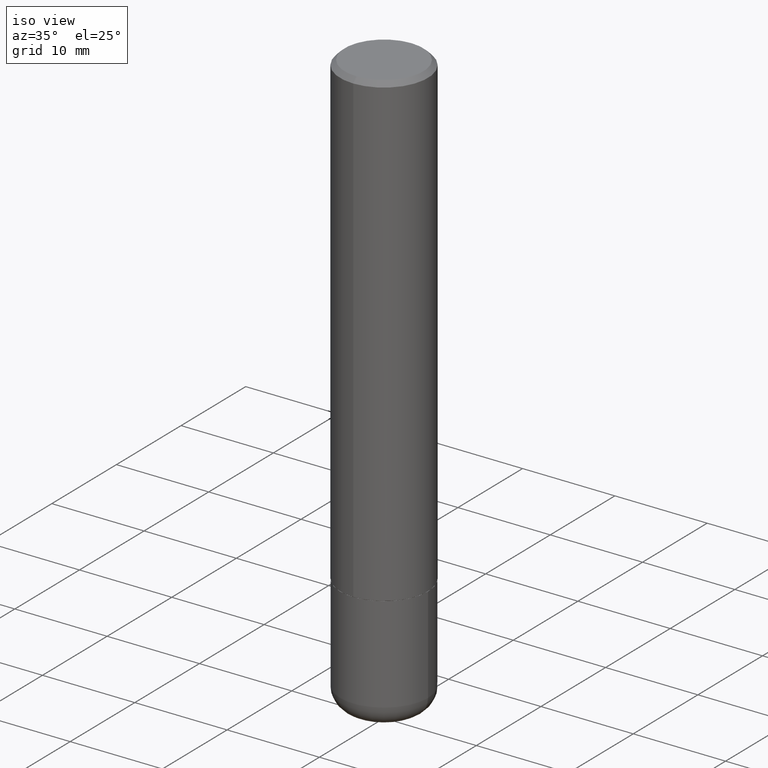
[diagram: clean part render]
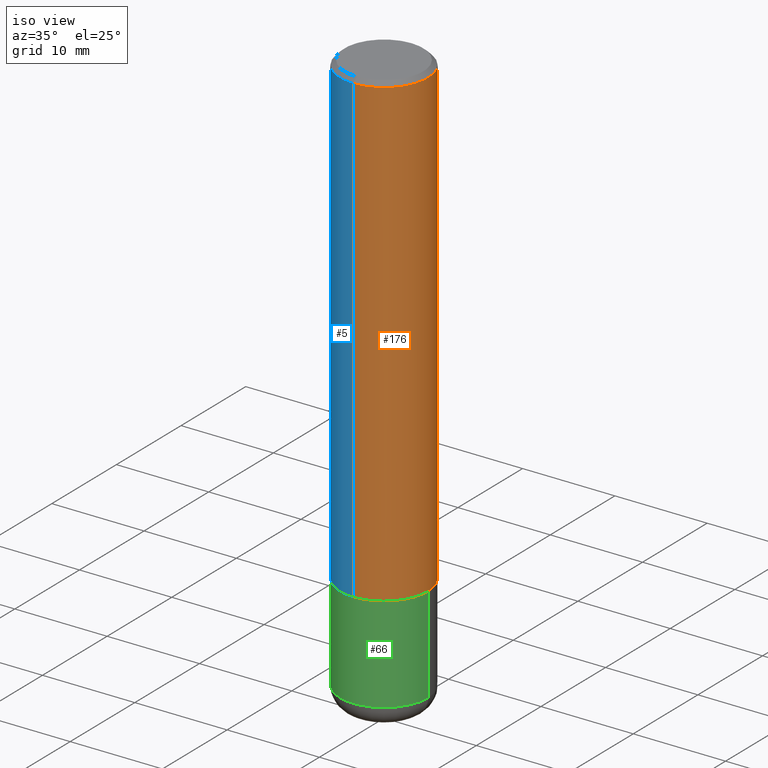
[diagram: same view with three faces highlighted in distinct colors, each labeled with its STEP entity id]
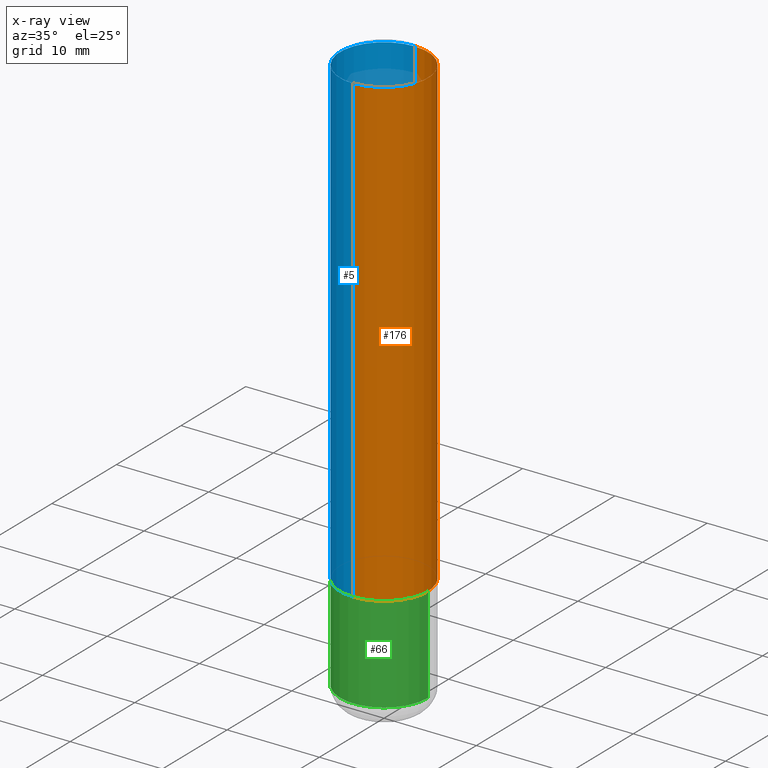
[diagram: x-ray of the same camera — body ghosted, the three highlighted faces saturated]
A machine part, iso view with three faces highlighted in distinct colors.
The next image is the same camera in x-ray (body ghosted, the three faces saturated) — at least one of them is partly hidden behind the body in this view.
Their STEP definitions:

[orange] entity #176 — the highlighted cylindrical surface (partial cylindrical patch) has radius 4.7625 mm, axis along (-0, 0, 1).
#3 = DIRECTION ( 'NONE',  ( -2.445162114595160294E-29, 3.491920538655792902E-15, 1.000000000000000000 ) ) ;
#16 = VERTEX_POINT ( 'NONE', #381 ) ;
#30 = EDGE_CURVE ( 'NONE', #89, #55, #33, .T. ) ;
#33 = LINE ( 'NONE', #211, #132 ) ;
#55 = VERTEX_POINT ( 'NONE', #123 ) ;
#72 = ORIENTED_EDGE ( 'NONE', *, *, #341, .F. ) ;
#84 = CARTESIAN_POINT ( 'NONE',  ( 4.890324229190331589E-31, -6.983841077311600052E-17, -0.02000000000000004205 ) ) ;
#89 = VERTEX_POINT ( 'NONE', #180 ) ;
#103 = CYLINDRICAL_SURFACE ( 'NONE', #200, 0.1875000000000001943 ) ;
#109 = CARTESIAN_POINT ( 'NONE',  ( 0.000000000000000000, 0.000000000000000000, 0.000000000000000000 ) ) ;
#117 = EDGE_CURVE ( 'NONE', #401, #16, #245, .T. ) ;
#123 = CARTESIAN_POINT ( 'NONE',  ( -1.286343374582161774E-15, -0.1875000000000001110, -0.01999999999999938979 ) ) ;
#132 = VECTOR ( 'NONE', #3, 39.37007874015748143 ) ;
#138 = DIRECTION ( 'NONE',  ( -2.445162114595160575E-29, 3.491920538655792507E-15, 1.000000000000000000 ) ) ;
#144 = CIRCLE ( 'NONE', #194, 0.1875000000000002776 ) ;
#146 = CARTESIAN_POINT ( 'NONE',  ( 1.332267629550213684E-15, 0.1874999999999933109, -1.999000000000000554 ) ) ;
#150 = DIRECTION ( 'NONE',  ( -2.445162114595160575E-29, 3.491920538655792507E-15, 1.000000000000000000 ) ) ;
#152 = VECTOR ( 'NONE', #182, 39.37007874015748143 ) ;
#176 = ADVANCED_FACE ( 'NONE', ( #360 ), #103, .T. ) ;
#180 = CARTESIAN_POINT ( 'NONE',  ( -1.309305502066128268E-15, -0.1875000000000072442, -1.998999999999999444 ) ) ;
#182 = DIRECTION ( 'NONE',  ( -2.445162114595160294E-29, 3.491920538655792902E-15, 1.000000000000000000 ) ) ;
#190 = CARTESIAN_POINT ( 'NONE',  ( 4.887879067075725967E-29, -6.980349156772927879E-15, -1.998999999999999888 ) ) ;
#194 = AXIS2_PLACEMENT_3D ( 'NONE', #190, #138, #267 ) ;
#200 = AXIS2_PLACEMENT_3D ( 'NONE', #109, #367, #262 ) ;
#204 = DIRECTION ( 'NONE',  ( -6.982962677686265922E-15, -1.000000000000000000, 3.483106191921934371E-15 ) ) ;
#207 = AXIS2_PLACEMENT_3D ( 'NONE', #84, #150, #204 ) ;
#211 = CARTESIAN_POINT ( 'NONE',  ( -1.309305502066176192E-15, -0.1875000000000001943, 6.547351009979617607E-16 ) ) ;
#245 = LINE ( 'NONE', #379, #152 ) ;
#262 = DIRECTION ( 'NONE',  ( -6.982962677686265922E-15, -1.000000000000000000, 3.491920538655792507E-15 ) ) ;
#267 = DIRECTION ( 'NONE',  ( -6.982962677686266711E-15, -1.000000000000000000, 2.913971193241876428E-15 ) ) ;
#276 = ORIENTED_EDGE ( 'NONE', *, *, #30, .F. ) ;
#290 = EDGE_CURVE ( 'NONE', #89, #401, #144, .T. ) ;
#302 = EDGE_LOOP ( 'NONE', ( #387, #345, #72, #276 ) ) ;
#341 = EDGE_CURVE ( 'NONE', #55, #16, #342, .T. ) ;
#342 = CIRCLE ( 'NONE', #207, 0.1875000000000000555 ) ;
#345 = ORIENTED_EDGE ( 'NONE', *, *, #117, .T. ) ;
#360 = FACE_OUTER_BOUND ( 'NONE', #302, .T. ) ;
#367 = DIRECTION ( 'NONE',  ( -2.445162114595160575E-29, 3.491920538655792507E-15, 1.000000000000000000 ) ) ;
#379 = CARTESIAN_POINT ( 'NONE',  ( 1.332267629550188835E-15, 0.1875000000000001943, -6.547351009979617607E-16 ) ) ;
#381 = CARTESIAN_POINT ( 'NONE',  ( 1.309305502066175797E-15, 0.1874999999999999722, -0.02000000000000069431 ) ) ;
#387 = ORIENTED_EDGE ( 'NONE', *, *, #290, .T. ) ;
#401 = VERTEX_POINT ( 'NONE', #146 ) ;

[blue] entity #5 — the highlighted cylindrical surface (partial cylindrical patch) has radius 4.7625 mm, axis along (-0, 0, 1).
#3 = DIRECTION ( 'NONE',  ( -2.445162114595160294E-29, 3.491920538655792902E-15, 1.000000000000000000 ) ) ;
#5 = ADVANCED_FACE ( 'NONE', ( #221 ), #319, .T. ) ;
#6 = DIRECTION ( 'NONE',  ( -6.982962677686265922E-15, -1.000000000000000000, 3.483106191921934371E-15 ) ) ;
#7 = DIRECTION ( 'NONE',  ( -2.445162114595160575E-29, 3.491920538655792507E-15, 1.000000000000000000 ) ) ;
#16 = VERTEX_POINT ( 'NONE', #381 ) ;
#30 = EDGE_CURVE ( 'NONE', #89, #55, #33, .T. ) ;
#33 = LINE ( 'NONE', #211, #132 ) ;
#55 = VERTEX_POINT ( 'NONE', #123 ) ;
#89 = VERTEX_POINT ( 'NONE', #180 ) ;
#105 = EDGE_CURVE ( 'NONE', #16, #55, #312, .T. ) ;
#110 = ORIENTED_EDGE ( 'NONE', *, *, #30, .T. ) ;
#117 = EDGE_CURVE ( 'NONE', #401, #16, #245, .T. ) ;
#123 = CARTESIAN_POINT ( 'NONE',  ( -1.286343374582161774E-15, -0.1875000000000001110, -0.01999999999999938979 ) ) ;
#132 = VECTOR ( 'NONE', #3, 39.37007874015748143 ) ;
#137 = DIRECTION ( 'NONE',  ( -6.982962677686266711E-15, -1.000000000000000000, 2.913971193241876428E-15 ) ) ;
#139 = CIRCLE ( 'NONE', #377, 0.1875000000000002776 ) ;
#146 = CARTESIAN_POINT ( 'NONE',  ( 1.332267629550213684E-15, 0.1874999999999933109, -1.999000000000000554 ) ) ;
#147 = EDGE_LOOP ( 'NONE', ( #326, #358, #110, #224 ) ) ;
#152 = VECTOR ( 'NONE', #182, 39.37007874015748143 ) ;
#180 = CARTESIAN_POINT ( 'NONE',  ( -1.309305502066128268E-15, -0.1875000000000072442, -1.998999999999999444 ) ) ;
#182 = DIRECTION ( 'NONE',  ( -2.445162114595160294E-29, 3.491920538655792902E-15, 1.000000000000000000 ) ) ;
#185 = DIRECTION ( 'NONE',  ( -2.445162114595160575E-29, 3.491920538655792507E-15, 1.000000000000000000 ) ) ;
#202 = EDGE_CURVE ( 'NONE', #401, #89, #139, .T. ) ;
#211 = CARTESIAN_POINT ( 'NONE',  ( -1.309305502066176192E-15, -0.1875000000000001943, 6.547351009979617607E-16 ) ) ;
#221 = FACE_OUTER_BOUND ( 'NONE', #147, .T. ) ;
#224 = ORIENTED_EDGE ( 'NONE', *, *, #105, .F. ) ;
#231 = CARTESIAN_POINT ( 'NONE',  ( 4.887879067075725967E-29, -6.980349156772927879E-15, -1.998999999999999888 ) ) ;
#245 = LINE ( 'NONE', #379, #152 ) ;
#251 = CARTESIAN_POINT ( 'NONE',  ( 0.000000000000000000, 0.000000000000000000, 0.000000000000000000 ) ) ;
#312 = CIRCLE ( 'NONE', #321, 0.1875000000000000555 ) ;
#319 = CYLINDRICAL_SURFACE ( 'NONE', #385, 0.1875000000000001943 ) ;
#321 = AXIS2_PLACEMENT_3D ( 'NONE', #346, #185, #6 ) ;
#326 = ORIENTED_EDGE ( 'NONE', *, *, #117, .F. ) ;
#346 = CARTESIAN_POINT ( 'NONE',  ( 4.890324229190331589E-31, -6.983841077311600052E-17, -0.02000000000000004205 ) ) ;
#358 = ORIENTED_EDGE ( 'NONE', *, *, #202, .T. ) ;
#363 = DIRECTION ( 'NONE',  ( -2.445162114595160575E-29, 3.491920538655792507E-15, 1.000000000000000000 ) ) ;
#377 = AXIS2_PLACEMENT_3D ( 'NONE', #231, #363, #137 ) ;
#379 = CARTESIAN_POINT ( 'NONE',  ( 1.332267629550188835E-15, 0.1875000000000001943, -6.547351009979617607E-16 ) ) ;
#381 = CARTESIAN_POINT ( 'NONE',  ( 1.309305502066175797E-15, 0.1874999999999999722, -0.02000000000000069431 ) ) ;
#385 = AXIS2_PLACEMENT_3D ( 'NONE', #251, #7, #386 ) ;
#386 = DIRECTION ( 'NONE',  ( -6.982962677686265922E-15, -1.000000000000000000, 3.491920538655792507E-15 ) ) ;
#401 = VERTEX_POINT ( 'NONE', #146 ) ;

[green] entity #66 — the highlighted cylindrical surface (partial cylindrical patch) has radius 4.7625 mm, axis along (-0, 0, 1).
#1 = DIRECTION ( 'NONE',  ( 1.000000000000000000, -6.982962677686266711E-15, 0.000000000000000000 ) ) ;
#13 = DIRECTION ( 'NONE',  ( 1.000000000000000000, -6.982962677686261189E-15, 0.000000000000000000 ) ) ;
#31 = CARTESIAN_POINT ( 'NONE',  ( 4.890937612370273194E-29, -6.982962677686291165E-15, -2.000000000000000000 ) ) ;
#40 = DIRECTION ( 'NONE',  ( -2.445468806185136597E-29, 3.491481338843145583E-15, 1.000000000000000000 ) ) ;
#47 = ORIENTED_EDGE ( 'NONE', *, *, #258, .T. ) ;
#49 = EDGE_LOOP ( 'NONE', ( #339, #47, #71, #142 ) ) ;
#54 = LINE ( 'NONE', #303, #215 ) ;
#66 = ADVANCED_FACE ( 'NONE', ( #164 ), #154, .T. ) ;
#68 = DIRECTION ( 'NONE',  ( 1.000000000000000000, -6.982962677686265922E-15, 4.876176775795935793E-29 ) ) ;
#70 = AXIS2_PLACEMENT_3D ( 'NONE', #352, #223, #68 ) ;
#71 = ORIENTED_EDGE ( 'NONE', *, *, #383, .T. ) ;
#113 = DIRECTION ( 'NONE',  ( -2.445468806185136877E-29, 3.491481338843145188E-15, 1.000000000000000000 ) ) ;
#122 = EDGE_CURVE ( 'NONE', #418, #296, #181, .T. ) ;
#131 = CARTESIAN_POINT ( 'NONE',  ( 0.1875000000000000278, -8.292268179752466962E-15, -2.000000000000000000 ) ) ;
#142 = ORIENTED_EDGE ( 'NONE', *, *, #122, .F. ) ;
#143 = CARTESIAN_POINT ( 'NONE',  ( 0.1874999999999999722, -9.723775528678158264E-15, -2.410000000000000142 ) ) ;
#154 = CYLINDRICAL_SURFACE ( 'NONE', #70, 0.1875000000000000278 ) ;
#156 = DIRECTION ( 'NONE',  ( -2.445468806185136597E-29, 3.491481338843145583E-15, 1.000000000000000000 ) ) ;
#164 = FACE_OUTER_BOUND ( 'NONE', #49, .T. ) ;
#181 = CIRCLE ( 'NONE', #279, 0.1875000000000000278 ) ;
#209 = CARTESIAN_POINT ( 'NONE',  ( -0.1875000000000000278, 1.332267629550188046E-15, -9.223003294227947991E-30 ) ) ;
#215 = VECTOR ( 'NONE', #113, 39.37007874015748143 ) ;
#223 = DIRECTION ( 'NONE',  ( -2.445468806185136597E-29, 3.491481338843145583E-15, 1.000000000000000000 ) ) ;
#236 = LINE ( 'NONE', #209, #336 ) ;
#237 = CIRCLE ( 'NONE', #271, 0.1875000000000000278 ) ;
#240 = CARTESIAN_POINT ( 'NONE',  ( -0.1875000000000000278, -6.366448722598948179E-15, -2.000000000000000000 ) ) ;
#249 = VERTEX_POINT ( 'NONE', #332 ) ;
#258 = EDGE_CURVE ( 'NONE', #249, #389, #237, .T. ) ;
#271 = AXIS2_PLACEMENT_3D ( 'NONE', #369, #40, #13 ) ;
#279 = AXIS2_PLACEMENT_3D ( 'NONE', #31, #156, #1 ) ;
#296 = VERTEX_POINT ( 'NONE', #131 ) ;
#303 = CARTESIAN_POINT ( 'NONE',  ( 0.1875000000000000278, -1.309305502066175008E-15, 9.142831454617381013E-30 ) ) ;
#332 = CARTESIAN_POINT ( 'NONE',  ( -0.1874999999999999722, -7.082202397061793830E-15, -2.410000000000000142 ) ) ;
#336 = VECTOR ( 'NONE', #373, 39.37007874015748143 ) ;
#339 = ORIENTED_EDGE ( 'NONE', *, *, #368, .F. ) ;
#352 = CARTESIAN_POINT ( 'NONE',  ( 0.000000000000000000, 0.000000000000000000, 0.000000000000000000 ) ) ;
#368 = EDGE_CURVE ( 'NONE', #249, #418, #236, .T. ) ;
#369 = CARTESIAN_POINT ( 'NONE',  ( 5.893579822906179826E-29, -8.414470026611981678E-15, -2.410000000000000142 ) ) ;
#373 = DIRECTION ( 'NONE',  ( -2.445468806185136877E-29, 3.491481338843145188E-15, 1.000000000000000000 ) ) ;
#383 = EDGE_CURVE ( 'NONE', #389, #296, #54, .T. ) ;
#389 = VERTEX_POINT ( 'NONE', #143 ) ;
#418 = VERTEX_POINT ( 'NONE', #240 ) ;